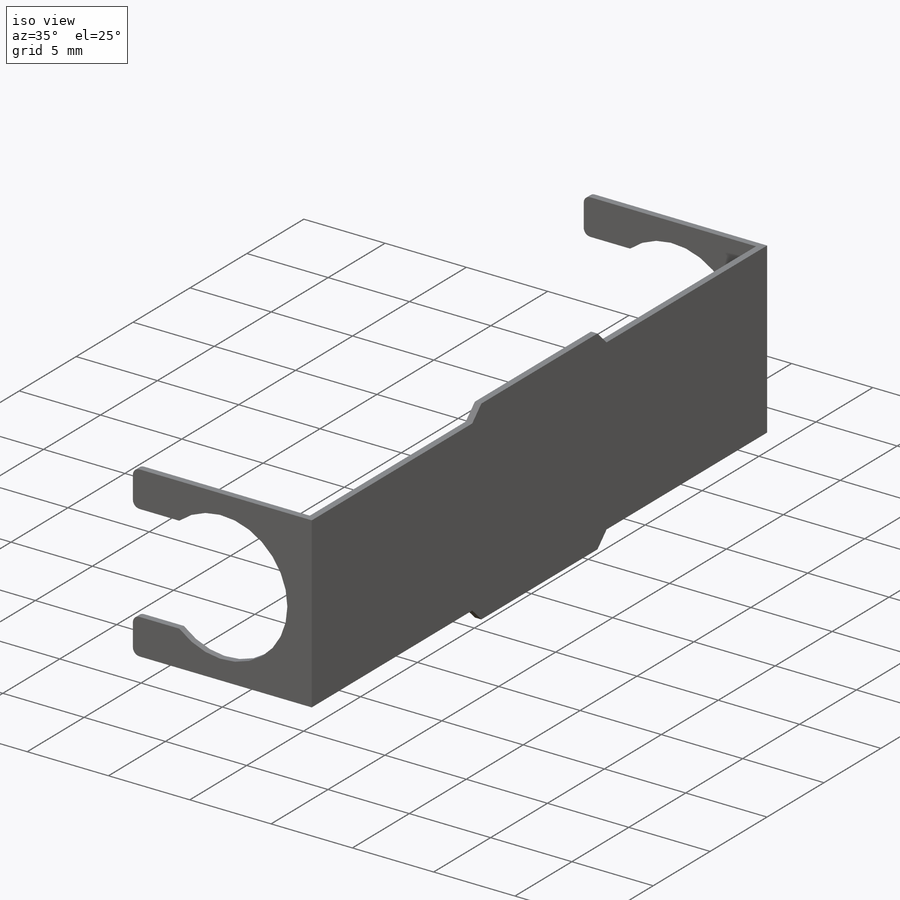
[diagram: iso view]
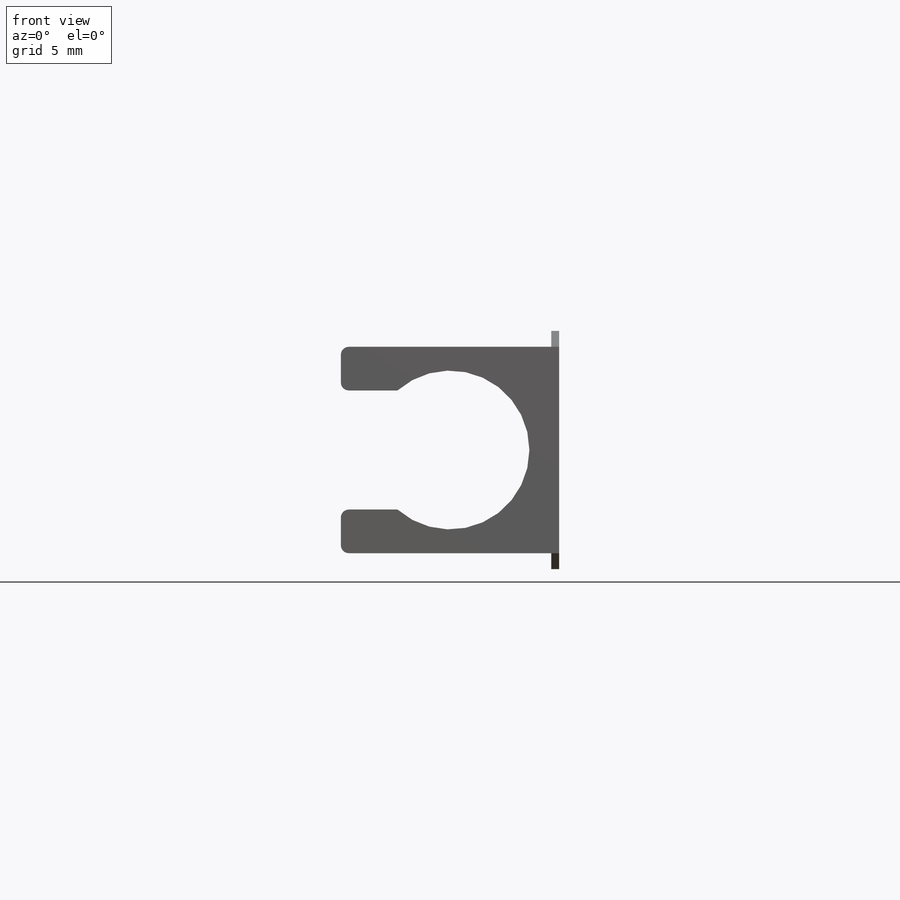
[diagram: front view]
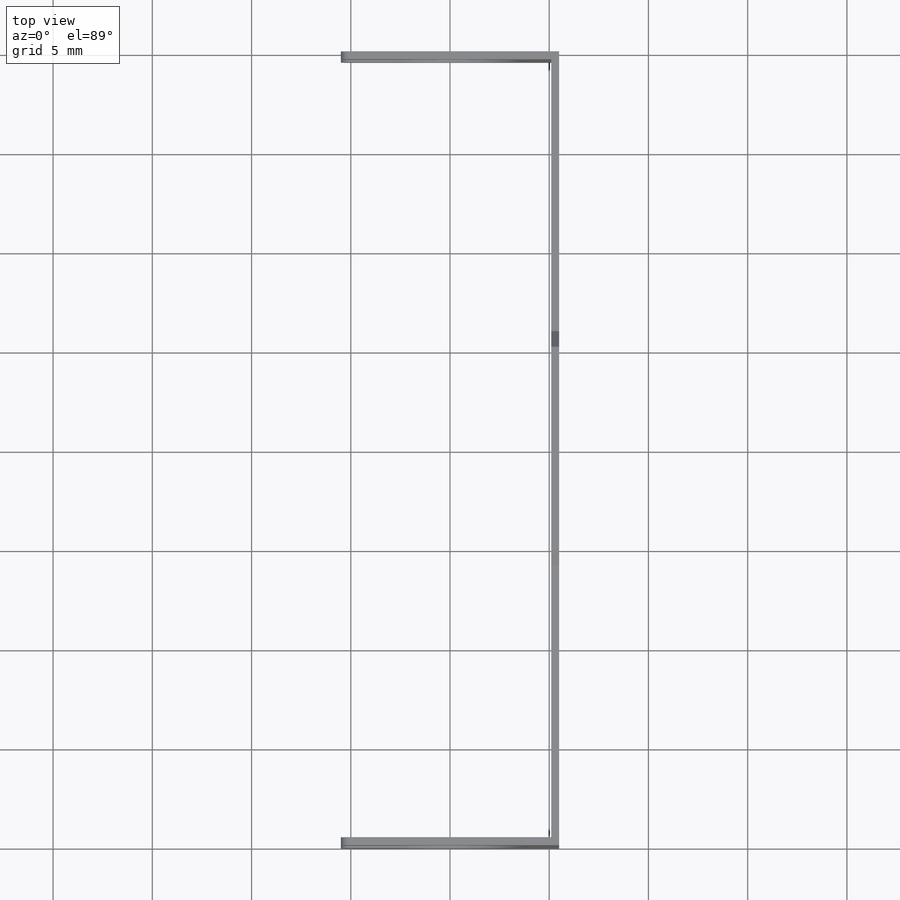
[diagram: top view]
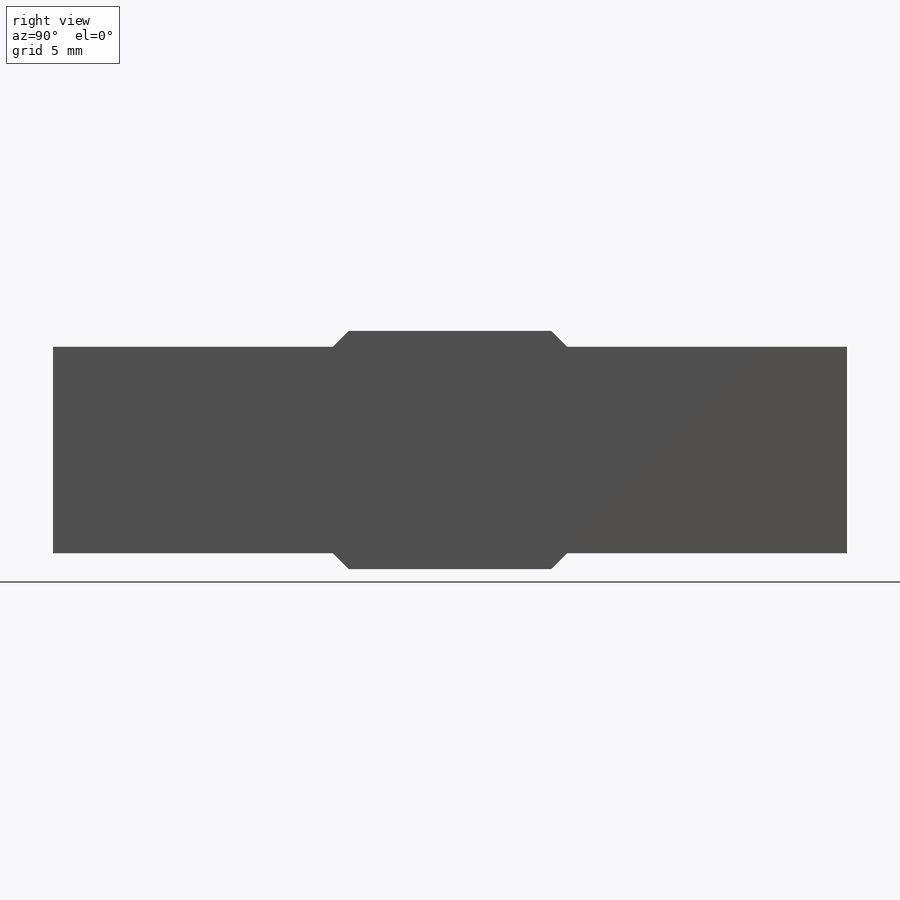
[diagram: right view]
SOLIDWORKS PART (.sldprt)
format: sldprt  version: not decoded by parser v0  size: 326,144 bytes
history: native  units: mm
features: sketch x8, cut_extrude x3, sheet_metal_op x2, material x1, extrude x1, mirror x1, chamfer x1, fillet x1 + 1 further entry (+13 scaffold rows collapsed; 1 parser-record rows omitted)
feature tree (33):
  scaffold x13  (default folders/planes/origin — collapsed)
  material  "Material <not specified>"
  sketch  "Sketch1"  dims[D1=12.0mm D2=11.0mm]
  extrude  "Boss-Extrude1"  Depth=40mm
  sketch  "Sketch2"  dims[D1=0.4mm]
  cut_extrude  "Cut-Extrude1"  [1 undecoded]
  sketch  "Sketch3"  dims[D1=11.8mm]
  cut_extrude  "Cut-Extrude2"  Depth=0.8mm
  mirror  "Mirror1"
  chamfer  "Chamfer1"  Distance=0.8mm Angle=45deg
  sketch  "Sketch4"  dims[D1=4.0mm D2=6.0mm]
  cut_extrude  "Cut-Extrude3"  [1 undecoded]
  fillet  "Fillet1"  Radius=0.4mm SharpBend2=0
  sketch  "Bend-Lines1"
  sketch  "Bounding-Box1"
  sheet_metal_op  "Sheet-Metal(6)"
  "Flat-Pattern(6)"
  sketch  "Bend-Lines2"
  sketch  "Bounding-Box2"
  sheet_metal_op  "Flatten-<SharpBend2>1"
  parser-record x1  (decoder bookkeeping rows leaked as tree rows — omitted from the tree; the rows remain in map.json)
decode coverage: 8 of 17 modeling features carry decoded parameters; 1 rows unclassified (native names shown)
note: 2 parameter values undecoded
note: suppression state not decoded; provenance and decode notes live in map.json
